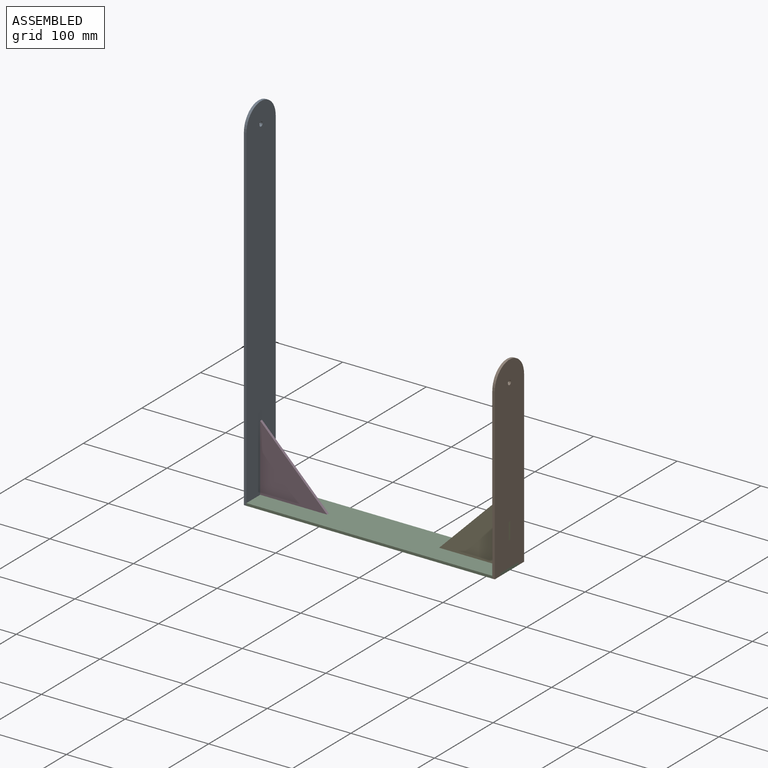
[diagram: assembled view]
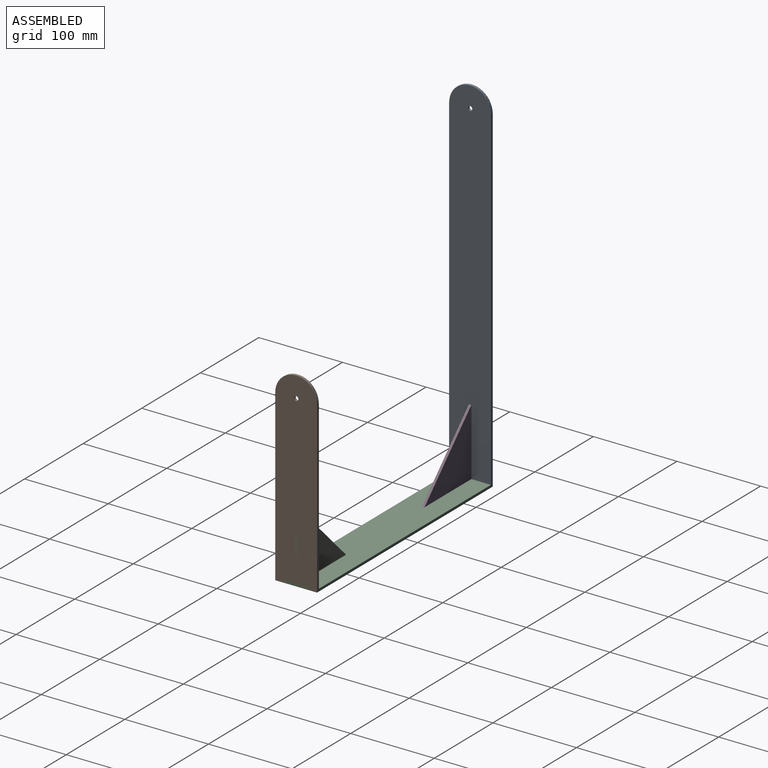
[diagram: assembled view, second angle]
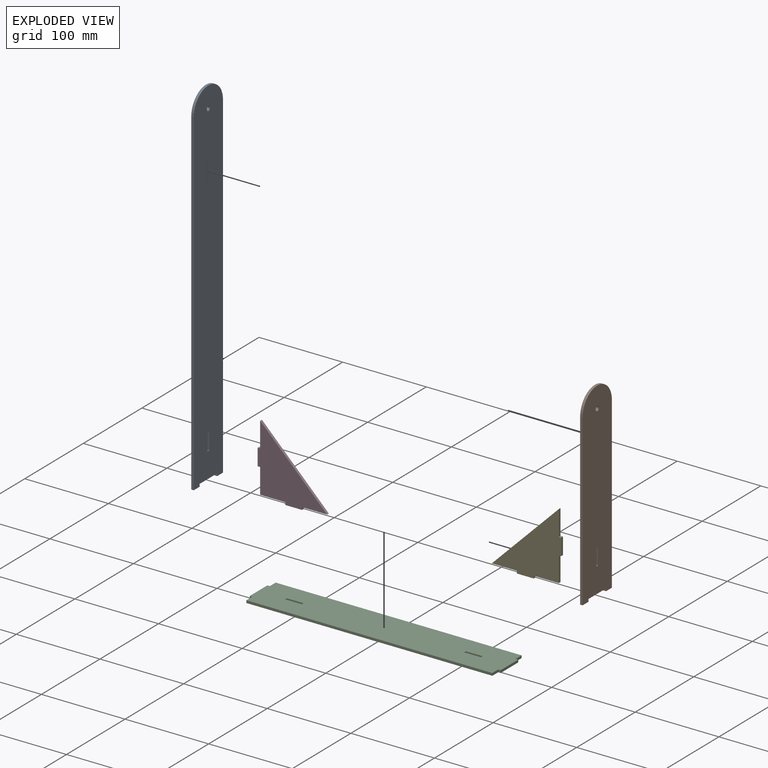
[diagram: exploded view]
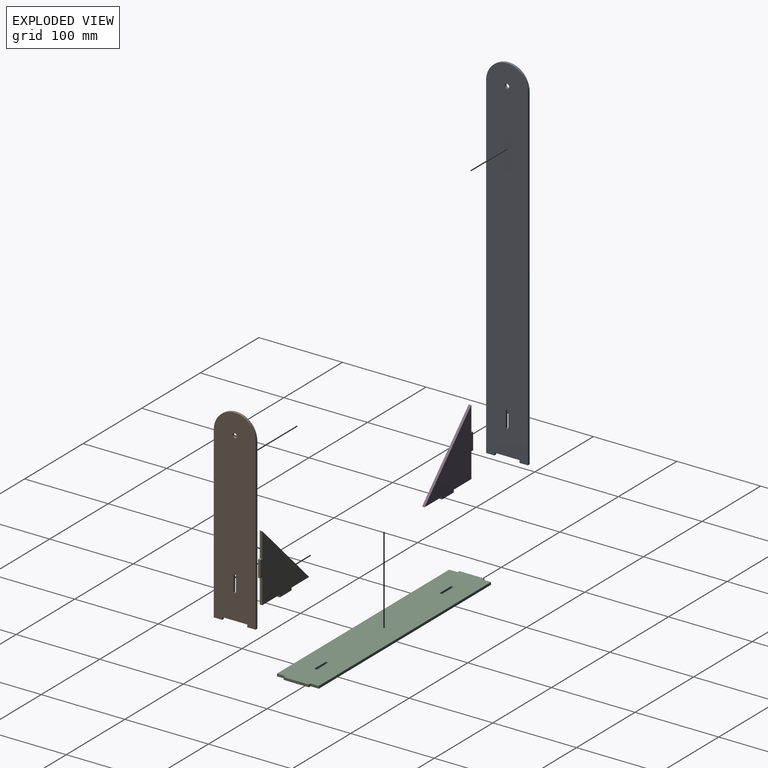
[diagram: exploded view, second angle]
ASSEMBLY  parts=5 mates=4
PART A: 15 faces, bbox 3x50x428 mm
  f0: plane 428x50mm, normal (1,0,0), area 20960.1mm2, adj f2,f3,f4,f5,f6,f7,f8,f9
  f1: plane 428x50mm, normal (-1,0,0), area 20960.1mm2, adj f2,f3,f4,f5,f6,f7,f8,f9
  f2: plane 403x3mm, normal (0,-1,0), area 1209mm2, adj f0,f1,f3,f14
  f3: plane 10x3mm, normal (0,0,-1), area 30mm2, adj f0,f1,f2,f4
  f4: plane 3x3mm, normal (0,1,0), area 9mm2, adj f0,f1,f3,f5
  f5: plane 30x3mm, normal (0,0,-1), area 90mm2, adj f0,f1,f4,f6
  f6: plane 3x3mm, normal (0,-1,0), area 9mm2, adj f0,f1,f5,f7
  f7: plane 10x3mm, normal (0,0,-1), area 30mm2, adj f0,f1,f6,f8
  f8: plane 403x3mm, normal (0,1,0), area 1209mm2, adj f0,f1,f7,f14
  f9: cylinder r=2.62mm len=5.25mm, axis (1,0,0), area 49.5mm2, adj f0,f1
  f10: plane 20x3mm, normal (0,1,0), area 60mm2, adj f0,f1,f11,f12
  f11: plane 3x3mm, normal (0,0,1), area 9mm2, adj f0,f1,f10,f13
  f12: plane 3x3mm, normal (0,0,-1), area 9mm2, adj f0,f1,f10,f13
  f13: plane 20x3mm, normal (0,-1,0), area 60mm2, adj f0,f1,f11,f12
  f14: cylinder r=25mm len=50mm, axis (-1,0,0), area 235.6mm2, adj f0,f1,f2,f8
PART B: 15 faces, bbox 3x50x228 mm
  f0: plane 228x50mm, normal (-1,0,0), area 10960.1mm2, adj f2,f3,f4,f5,f6,f7,f8,f9
  f1: plane 228x50mm, normal (1,0,0), area 10960.1mm2, adj f2,f3,f4,f5,f6,f7,f8,f9
  f2: plane 10x3mm, normal (0,0,-1), area 30mm2, adj f0,f1,f3,f8
  f3: plane 3x3mm, normal (0,-1,0), area 9mm2, adj f0,f1,f2,f4
  f4: plane 30x3mm, normal (0,0,-1), area 90mm2, adj f0,f1,f3,f5
  f5: plane 3x3mm, normal (0,1,0), area 9mm2, adj f0,f1,f4,f6
  f6: plane 10x3mm, normal (0,0,-1), area 30mm2, adj f0,f1,f5,f7
  f7: plane 203x3mm, normal (0,-1,0), area 609mm2, adj f0,f1,f6,f14
  f8: plane 203x3mm, normal (0,1,0), area 609mm2, adj f0,f1,f2,f14
  f9: cylinder r=2.62mm len=5.25mm, axis (-1,0,0), area 49.5mm2, adj f0,f1
  f10: plane 20x3mm, normal (0,1,0), area 60mm2, adj f0,f1,f11,f12
  f11: plane 3x3mm, normal (0,0,1), area 9mm2, adj f0,f1,f10,f13
  f12: plane 3x3mm, normal (0,0,-1), area 9mm2, adj f0,f1,f10,f13
  f13: plane 20x3mm, normal (0,-1,0), area 60mm2, adj f0,f1,f11,f12
  f14: cylinder r=25mm len=50mm, axis (1,0,0), area 235.6mm2, adj f0,f1,f7,f8
PART C: 22 faces, bbox 300x50x3 mm
  f0: plane 300x50mm, normal (0,0,1), area 14760mm2, adj f2,f3,f4,f5,f6,f7,f8,f9
  f1: plane 300x50mm, normal (0,0,-1), area 14760mm2, adj f2,f3,f4,f5,f6,f7,f8,f9
  f2: plane 30x3mm, normal (1,0,0), area 90mm2, adj f0,f1,f9,f12
  f3: plane 294x3mm, normal (0,1,0), area 882mm2, adj f0,f1,f6,f13
  f4: plane 30x3mm, normal (-1,0,0), area 90mm2, adj f0,f1,f7,f10
  f5: plane 294x3mm, normal (0,-1,0), area 882mm2, adj f0,f1,f8,f11
  f6: plane 10x3mm, normal (-1,0,0), area 30mm2, adj f0,f1,f3,f7
  f7: plane 3x3mm, normal (0,1,0), area 9mm2, adj f0,f1,f4,f6
  f8: plane 10x3mm, normal (1,0,0), area 30mm2, adj f0,f1,f5,f9
  f9: plane 3x3mm, normal (0,-1,0), area 9mm2, adj f0,f1,f2,f8
  f10: plane 3x3mm, normal (0,-1,0), area 9mm2, adj f0,f1,f4,f11
  f11: plane 10x3mm, normal (-1,0,0), area 30mm2, adj f0,f1,f5,f10
  f12: plane 3x3mm, normal (0,1,0), area 9mm2, adj f0,f1,f2,f13
  f13: plane 10x3mm, normal (1,0,0), area 30mm2, adj f0,f1,f3,f12
  f14: plane 20x3mm, normal (0,1,0), area 60mm2, adj f0,f1,f15,f17
  f15: plane 3x3mm, normal (1,0,0), area 9mm2, adj f0,f1,f14,f16
  f16: plane 20x3mm, normal (0,-1,0), area 60mm2, adj f0,f1,f15,f17
  f17: plane 3x3mm, normal (-1,0,0), area 9mm2, adj f0,f1,f14,f16
  f18: plane 20x3mm, normal (0,1,0), area 60mm2, adj f0,f1,f19,f21
  f19: plane 3x3mm, normal (1,0,0), area 9mm2, adj f0,f1,f18,f20
  f20: plane 20x3mm, normal (0,-1,0), area 60mm2, adj f0,f1,f19,f21
  f21: plane 3x3mm, normal (-1,0,0), area 9mm2, adj f0,f1,f18,f20
PART D: 13 faces, bbox 83x3x83 mm
  f0: plane 3x3mm, normal (1,0,0), area 9mm2, adj f1,f10,f11,f12
  f1: plane 30x3mm, normal (0,0,-1), area 90mm2, adj f0,f2,f11,f12
  f2: plane 80x80mm, normal (0.71,0,0.71), area 339.4mm2, adj f1,f3,f11,f12
  f3: plane 30x3mm, normal (-1,0,0), area 90mm2, adj f2,f4,f11,f12
  f4: plane 3x3mm, normal (0,0,1), area 9mm2, adj f3,f5,f11,f12
  f5: plane 20x3mm, normal (-1,0,0), area 60mm2, adj f4,f6,f11,f12
  f6: plane 3x3mm, normal (0,0,-1), area 9mm2, adj f5,f7,f11,f12
  f7: plane 30x3mm, normal (-1,0,0), area 90mm2, adj f6,f8,f11,f12
  f8: plane 30x3mm, normal (0,0,-1), area 90mm2, adj f7,f9,f11,f12
  f9: plane 3x3mm, normal (-1,0,0), area 9mm2, adj f8,f10,f11,f12
  f10: plane 20x3mm, normal (0,0,-1), area 60mm2, adj f0,f9,f11,f12
  f11: plane 83x83mm, normal (0,-1,0), area 3320mm2, adj f0,f1,f2,f3,f4,f5,f6,f7
  f12: plane 83x83mm, normal (0,1,0), area 3320mm2, adj f0,f1,f2,f3,f4,f5,f6,f7
PART E: same geometry as D
PLACE A t=(-297.2,-0.29,-1.75)mm
PLACE B t=(296.8,-0.29,-1.75)mm
PLACE C t=(-0.2,-0.29,-1.75)mm fixed
PLACE D t=(-0.2,-0.29,-1.75)mm
PLACE E rot(axis=(0,0,-1),180deg) t=(-0.2,-0.29,-1.75)mm
MATE fastened B.f0 <-> C.f13  axis (-1,0,0) through (146.8,14.71,1.25)mm
MATE fastened D.f9 <-> C.f15  axis (-1,0,0) through (-117.2,-0.29,1.25)mm
MATE fastened A.f0 <-> C.f6  axis (1,0,0) through (-147.2,14.71,1.25)mm
MATE fastened E.f9 <-> C.f21  axis (1,0,0) through (116.8,-0.29,1.25)mm
